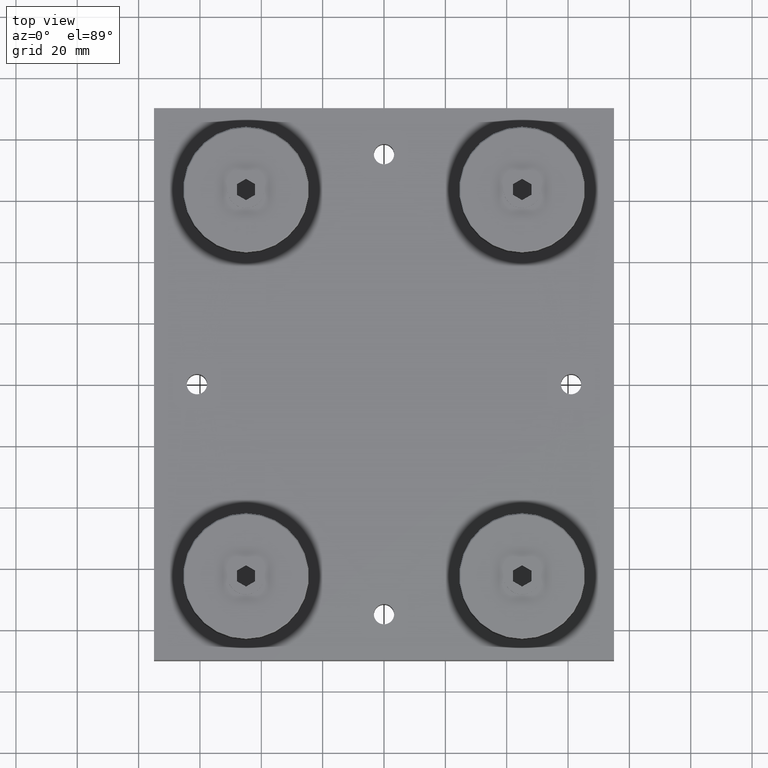
[diagram: clean part render]
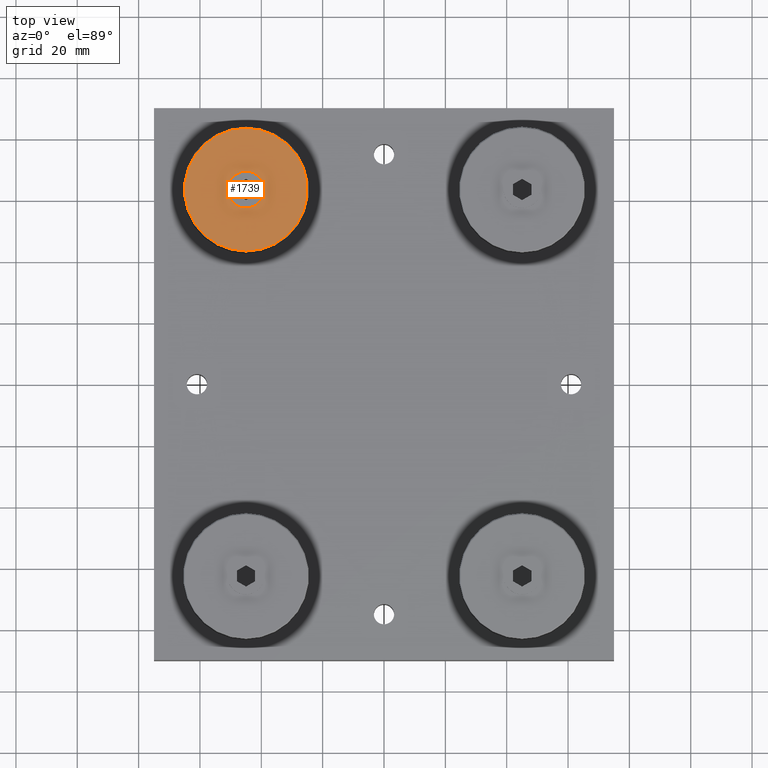
[diagram: same view with one face highlighted and labeled with its STEP entity id]
A machine part, top view. The second image highlights one B-rep face of the part: STEP entity #1739.
In plain terms, the highlighted planar face has unit normal (0, 0, -1).
Its self-contained STEP definition (entity closure, byte-faithful):
#203=FACE_BOUND('',#450,.T.);
#235=PLANE('',#2081);
#319=FACE_OUTER_BOUND('',#449,.T.);
#449=EDGE_LOOP('',(#1414));
#450=EDGE_LOOP('',(#1415));
#811=CIRCLE('',#2054,20.);
#816=CIRCLE('',#2066,6.);
#913=VERTEX_POINT('',#2890);
#924=VERTEX_POINT('',#2925);
#1079=EDGE_CURVE('',#913,#913,#811,.F.);
#1095=EDGE_CURVE('',#924,#924,#816,.T.);
#1414=ORIENTED_EDGE('',*,*,#1079,.T.);
#1415=ORIENTED_EDGE('',*,*,#1095,.F.);
#1739=ADVANCED_FACE('',(#319,#203),#235,.F.);
#2054=AXIS2_PLACEMENT_3D('',#2892,#2365,#2366);
#2066=AXIS2_PLACEMENT_3D('',#2926,#2400,#2401);
#2081=AXIS2_PLACEMENT_3D('',#2953,#2436,#2437);
#2365=DIRECTION('center_axis',(0.,0.,1.));
#2366=DIRECTION('ref_axis',(1.,0.,0.));
#2400=DIRECTION('center_axis',(0.,0.,-1.));
#2401=DIRECTION('ref_axis',(-1.,0.,0.));
#2436=DIRECTION('center_axis',(0.,0.,1.));
#2437=DIRECTION('ref_axis',(1.,0.,0.));
#2890=CARTESIAN_POINT('',(-20.,-2.44929359829471E-15,1.));
#2892=CARTESIAN_POINT('Origin',(0.,0.,1.));
#2925=CARTESIAN_POINT('',(6.,7.34788079488412E-16,1.));
#2926=CARTESIAN_POINT('Origin',(0.,0.,1.));
#2953=CARTESIAN_POINT('Origin',(-20.5,0.,1.));